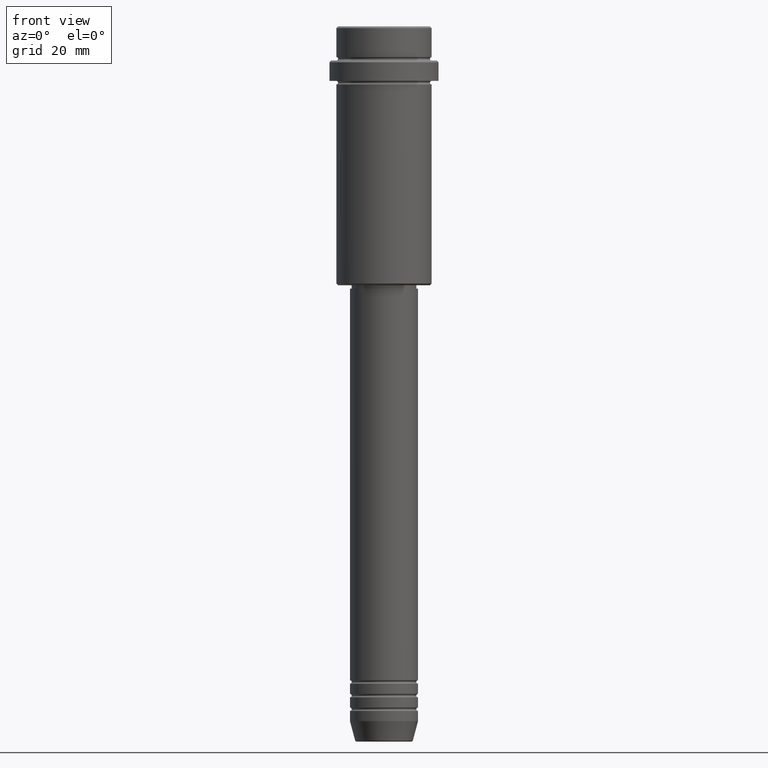
[diagram: clean part render]
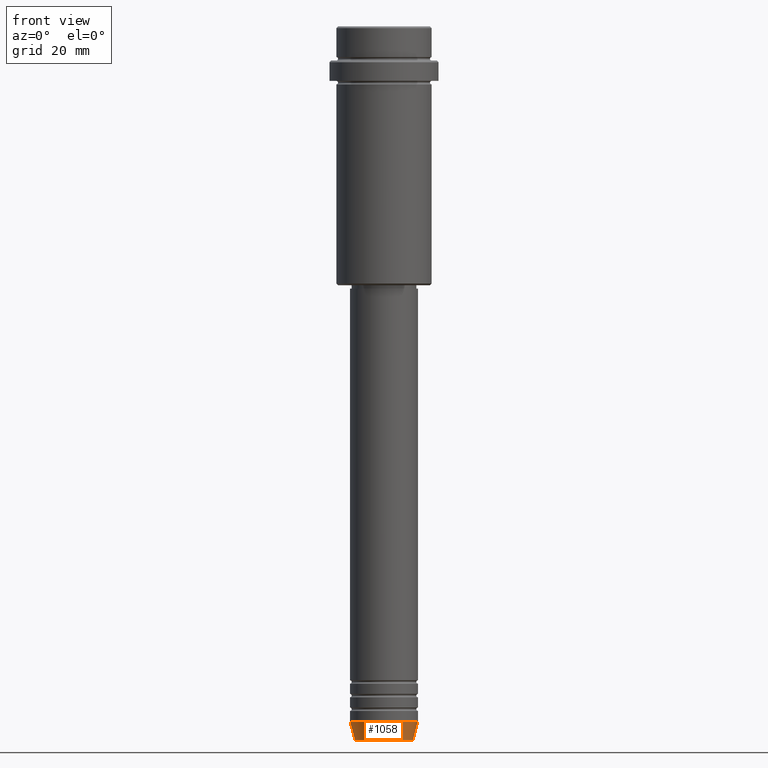
[diagram: same view with one face highlighted and labeled with its STEP entity id]
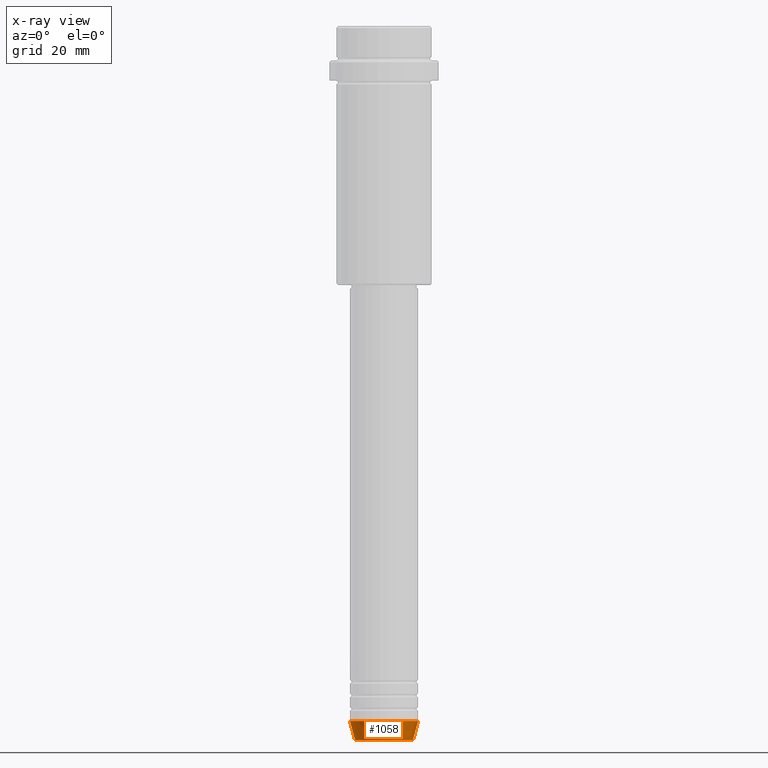
[diagram: x-ray of the same camera — body ghosted, the highlighted face saturated]
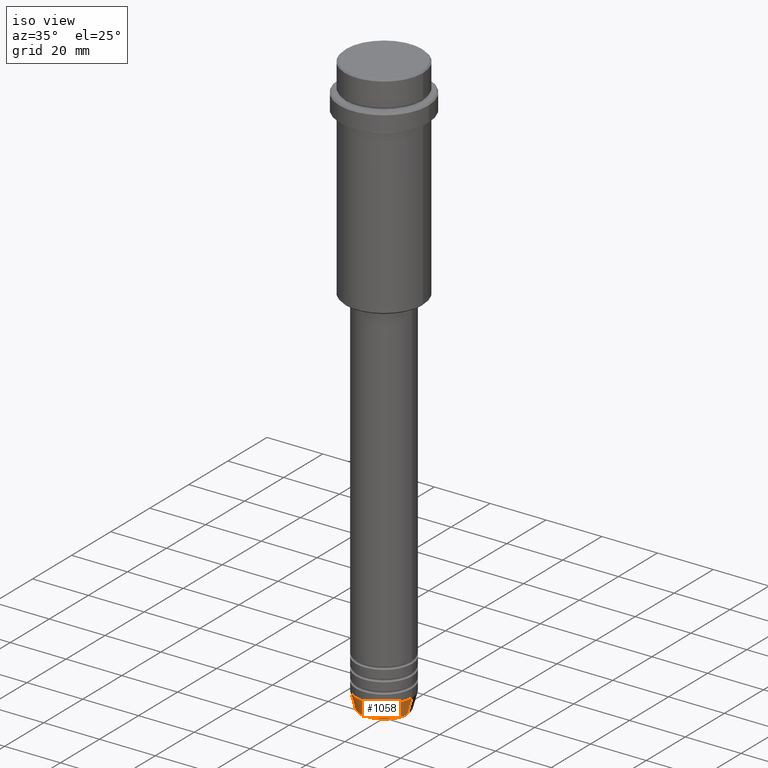
[diagram: same view with one face highlighted and labeled with its STEP entity id]
A machine part, front view. The second image highlights one B-rep face of the part: STEP entity #1058.
The next image is the same camera in x-ray: the body ghosted, the highlighted face saturated — about 0% of this face is hidden behind the body in this view.
A second angle (iso view) of the same face is appended — the face is thin or edge-on in the first view.
In plain terms, the highlighted conical surface has half-angle 15 deg.
Its self-contained STEP definition (entity closure, byte-faithful):
#61 = EDGE_LOOP ( 'NONE', ( #358, #1042, #746, #1093 ) ) ;
#68 = EDGE_CURVE ( 'NONE', #609, #1387, #748, .T. ) ;
#76 = CARTESIAN_POINT ( 'NONE',  ( -10.00000000000000000, 1.224646799147353256E-15, -204.0000000000000284 ) ) ;
#138 = CARTESIAN_POINT ( 'NONE',  ( 0.000000000000000000, 0.000000000000000000, -204.0000000000000284 ) ) ;
#159 = AXIS2_PLACEMENT_3D ( 'NONE', #533, #412, #855 ) ;
#232 = CIRCLE ( 'NONE', #680, 10.00000000000000000 ) ;
#277 = DIRECTION ( 'NONE',  ( -0.2588190451025211281, 3.169619151431769872E-17, 0.9659258262890680902 ) ) ;
#286 = EDGE_CURVE ( 'NONE', #1414, #521, #577, .T. ) ;
#312 = CARTESIAN_POINT ( 'NONE',  ( 8.491604264568309191, 0.000000000000000000, -209.6294095225512990 ) ) ;
#328 = DIRECTION ( 'NONE',  ( 0.2588190451025211281, 0.000000000000000000, 0.9659258262890680902 ) ) ;
#339 = CONICAL_SURFACE ( 'NONE', #1159, 10.00000000000000000, 0.2617993877991498519 ) ;
#340 = CIRCLE ( 'NONE', #159, 8.491604264568309191 ) ;
#358 = ORIENTED_EDGE ( 'NONE', *, *, #68, .F. ) ;
#412 = DIRECTION ( 'NONE',  ( -0.000000000000000000, -0.000000000000000000, 1.000000000000000000 ) ) ;
#442 = DIRECTION ( 'NONE',  ( -0.000000000000000000, -0.000000000000000000, 1.000000000000000000 ) ) ;
#521 = VERTEX_POINT ( 'NONE', #870 ) ;
#533 = CARTESIAN_POINT ( 'NONE',  ( 0.000000000000000000, 0.000000000000000000, -209.6294095225512990 ) ) ;
#577 = LINE ( 'NONE', #1316, #756 ) ;
#596 = DIRECTION ( 'NONE',  ( 1.000000000000000000, 0.000000000000000000, 0.000000000000000000 ) ) ;
#609 = VERTEX_POINT ( 'NONE', #1234 ) ;
#680 = AXIS2_PLACEMENT_3D ( 'NONE', #138, #1345, #596 ) ;
#733 = VECTOR ( 'NONE', #277, 1000.000000000000114 ) ;
#746 = ORIENTED_EDGE ( 'NONE', *, *, #286, .T. ) ;
#748 = LINE ( 'NONE', #883, #733 ) ;
#756 = VECTOR ( 'NONE', #328, 1000.000000000000114 ) ;
#833 = EDGE_CURVE ( 'NONE', #609, #1414, #340, .T. ) ;
#855 = DIRECTION ( 'NONE',  ( 1.000000000000000000, 0.000000000000000000, 0.000000000000000000 ) ) ;
#870 = CARTESIAN_POINT ( 'NONE',  ( 10.00000000000000000, 0.000000000000000000, -204.0000000000000284 ) ) ;
#878 = FACE_OUTER_BOUND ( 'NONE', #61, .T. ) ;
#881 = CARTESIAN_POINT ( 'NONE',  ( 0.000000000000000000, 0.000000000000000000, -204.0000000000000284 ) ) ;
#883 = CARTESIAN_POINT ( 'NONE',  ( -10.00000000000000000, 1.224646799147353256E-15, -204.0000000000000284 ) ) ;
#1008 = DIRECTION ( 'NONE',  ( 1.000000000000000000, 0.000000000000000000, 0.000000000000000000 ) ) ;
#1042 = ORIENTED_EDGE ( 'NONE', *, *, #833, .T. ) ;
#1058 = ADVANCED_FACE ( 'NONE', ( #878 ), #339, .T. ) ;
#1093 = ORIENTED_EDGE ( 'NONE', *, *, #1272, .F. ) ;
#1159 = AXIS2_PLACEMENT_3D ( 'NONE', #881, #442, #1008 ) ;
#1234 = CARTESIAN_POINT ( 'NONE',  ( -8.491604264568309191, 1.132284198685156387E-15, -209.6294095225512990 ) ) ;
#1272 = EDGE_CURVE ( 'NONE', #1387, #521, #232, .T. ) ;
#1316 = CARTESIAN_POINT ( 'NONE',  ( 10.00000000000000000, 0.000000000000000000, -204.0000000000000284 ) ) ;
#1345 = DIRECTION ( 'NONE',  ( -0.000000000000000000, -0.000000000000000000, 1.000000000000000000 ) ) ;
#1387 = VERTEX_POINT ( 'NONE', #76 ) ;
#1414 = VERTEX_POINT ( 'NONE', #312 ) ;